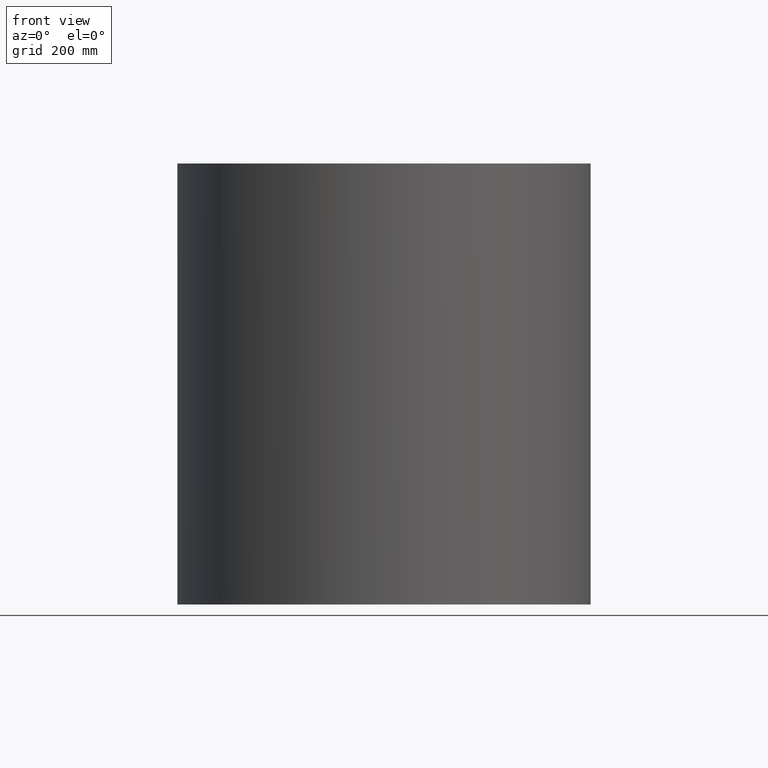
[diagram: clean part render]
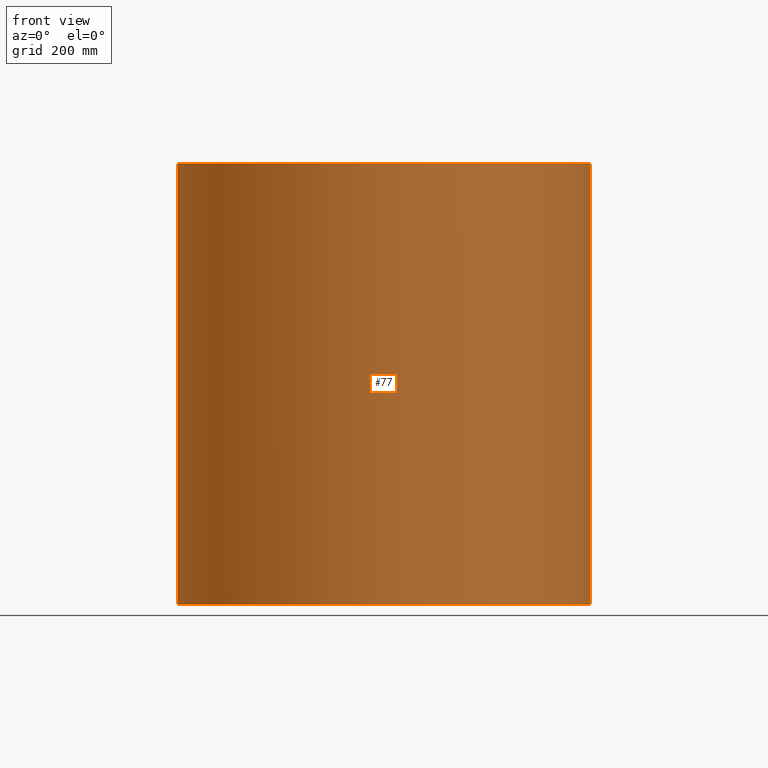
[diagram: same view with one face highlighted and labeled with its STEP entity id]
A machine part, front view. The second image highlights one B-rep face of the part: STEP entity #77.
In plain terms, the highlighted cylindrical surface (bore or boss wall) has radius 375 mm, axis along (0, 0, -1).
Its self-contained STEP definition (entity closure, byte-faithful):
#27=CARTESIAN_POINT('',(0.,0.,800.));
#28=DIRECTION('',(0.,0.,-1.));
#29=DIRECTION('',(-1.,0.,0.));
#30=AXIS2_PLACEMENT_3D('',#27,#28,#29);
#31=CYLINDRICAL_SURFACE('',#30,375.);
#32=CARTESIAN_POINT('',(-375.,0.,0.));
#33=VERTEX_POINT('',#32);
#34=CARTESIAN_POINT('',(-375.,0.,800.));
#35=VERTEX_POINT('',#34);
#36=CARTESIAN_POINT('',(-375.,0.,0.));
#37=DIRECTION('',(-0.,-0.,1.));
#38=VECTOR('',#37,800.);
#39=LINE('',#36,#38);
#40=EDGE_CURVE('',#33,#35,#39,.T.);
#41=ORIENTED_EDGE('',*,*,#40,.T.);
#42=CARTESIAN_POINT('',(375.,-0.,800.));
#43=VERTEX_POINT('',#42);
#44=CARTESIAN_POINT('',(0.,0.,800.));
#45=DIRECTION('',(0.,0.,1.));
#46=DIRECTION('',(1.,0.,-0.));
#47=AXIS2_PLACEMENT_3D('',#44,#45,#46);
#48=CIRCLE('',#47,375.);
#49=EDGE_CURVE('',#43,#35,#48,.T.);
#50=ORIENTED_EDGE('',*,*,#49,.F.);
#51=CARTESIAN_POINT('',(0.,0.,800.));
#52=DIRECTION('',(0.,0.,1.));
#53=DIRECTION('',(1.,0.,-0.));
#54=AXIS2_PLACEMENT_3D('',#51,#52,#53);
#55=CIRCLE('',#54,375.);
#56=EDGE_CURVE('',#35,#43,#55,.T.);
#57=ORIENTED_EDGE('',*,*,#56,.F.);
#58=ORIENTED_EDGE('',*,*,#40,.F.);
#59=CARTESIAN_POINT('',(375.,-0.,0.));
#60=VERTEX_POINT('',#59);
#61=CARTESIAN_POINT('',(0.,0.,0.));
#62=DIRECTION('',(0.,0.,1.));
#63=DIRECTION('',(1.,0.,-0.));
#64=AXIS2_PLACEMENT_3D('',#61,#62,#63);
#65=CIRCLE('',#64,375.);
#66=EDGE_CURVE('',#33,#60,#65,.T.);
#67=ORIENTED_EDGE('',*,*,#66,.T.);
#68=CARTESIAN_POINT('',(0.,0.,0.));
#69=DIRECTION('',(0.,0.,1.));
#70=DIRECTION('',(1.,0.,-0.));
#71=AXIS2_PLACEMENT_3D('',#68,#69,#70);
#72=CIRCLE('',#71,375.);
#73=EDGE_CURVE('',#60,#33,#72,.T.);
#74=ORIENTED_EDGE('',*,*,#73,.T.);
#75=EDGE_LOOP('',(#41,#50,#57,#58,#67,#74));
#76=FACE_BOUND('',#75,.T.);
#77=ADVANCED_FACE('',(#76),#31,.T.);